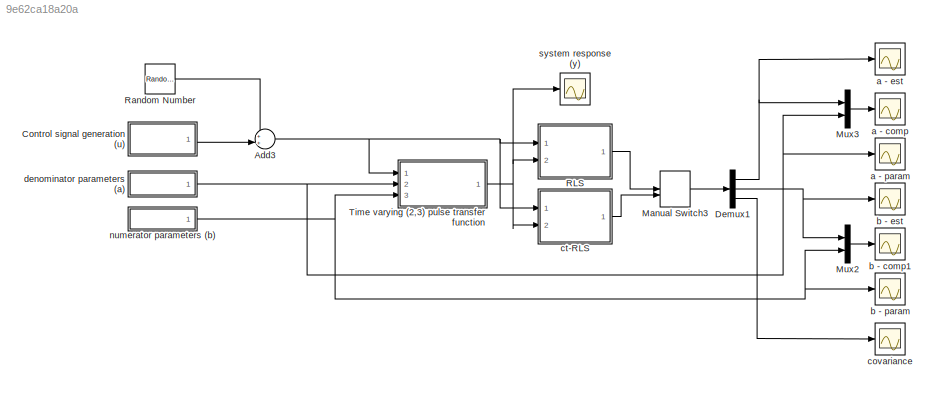
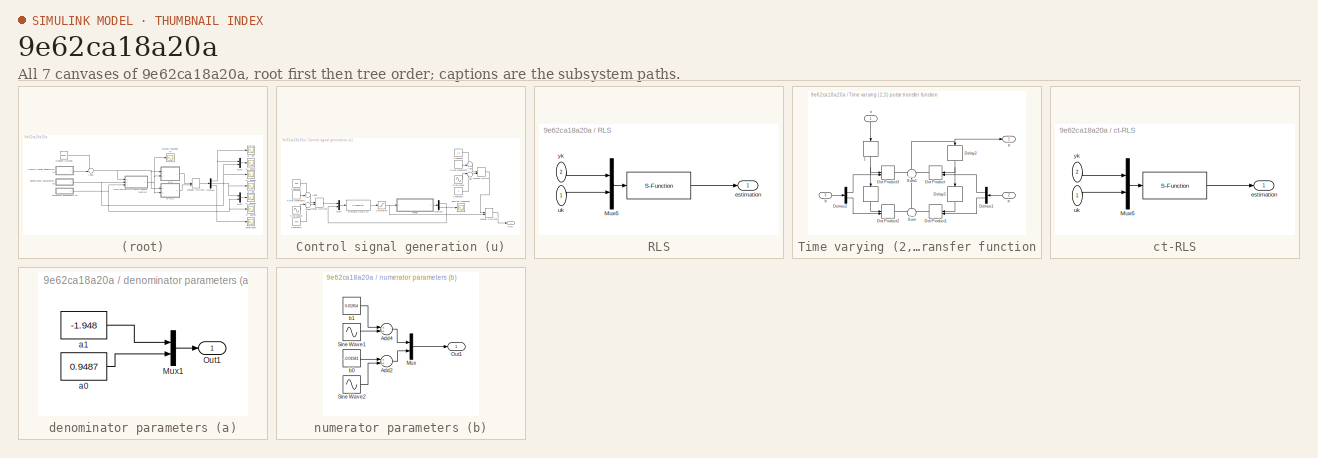
[diagram: thumbnail index - all 7 canvases of the model, root first then tree order]
MODEL slx_9e62ca18a20a
KIND model
CONFIG AbsTol = auto
CONFIG FixedStep = auto
CONFIG MaxStep = auto
CONFIG MinStep = auto
CONFIG RelTol = 1e-3
CONFIG SampleTimeConstraint = Unconstrained
CONFIG Solver = VariableStepAuto
CONFIG SolverMode = Auto
CONFIG SolverName = VariableStepAuto
CONFIG StartTime = 0.0
CONFIG StopTime = 40
BLOCK [Sum] Add3
  IconShape = round
  InputSameDT = off
  Inputs = ++|
  OutDataTypeStr = Inherit: Inherit via internal rule
  Ports = [2, 1]
  SaturateOnIntegerOverflow = off
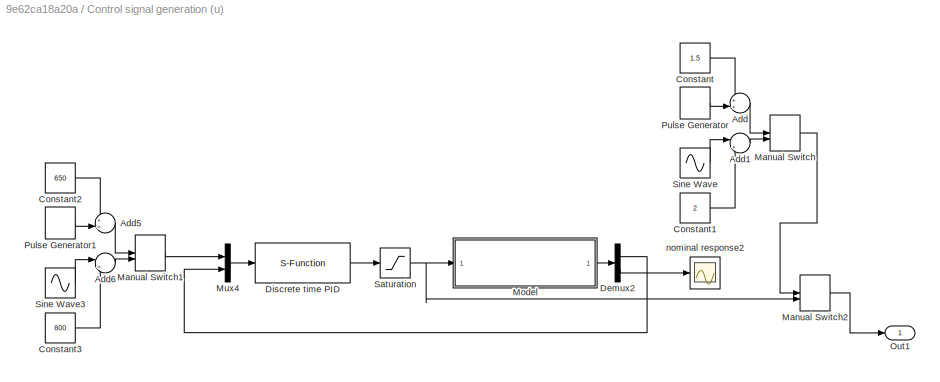
BLOCK [SubSystem] Control signal generation (u)
  Ports = [0, 1]
  RequestExecContextInheritance = off
  Variant = off
BLOCK [Sum] Control signal generation (u)/Add
  IconShape = round
  InputSameDT = off
  Inputs = ++|
  OutDataTypeStr = Inherit: Inherit via internal rule
  Ports = [2, 1]
  SaturateOnIntegerOverflow = off
BLOCK [Sum] Control signal generation (u)/Add1
  IconShape = round
  InputSameDT = off
  Inputs = |++
  OutDataTypeStr = Inherit: Inherit via internal rule
  Ports = [2, 1]
  SaturateOnIntegerOverflow = off
BLOCK [Sum] Control signal generation (u)/Add5
  IconShape = round
  InputSameDT = off
  Inputs = ++|
  OutDataTypeStr = Inherit: Inherit via internal rule
  Ports = [2, 1]
  SaturateOnIntegerOverflow = off
BLOCK [Sum] Control signal generation (u)/Add6
  IconShape = round
  InputSameDT = off
  Inputs = |++
  OutDataTypeStr = Inherit: Inherit via internal rule
  Ports = [2, 1]
  SaturateOnIntegerOverflow = off
BLOCK [Constant] Control signal generation (u)/Constant
  Value = 1.5
BLOCK [Constant] Control signal generation (u)/Constant1
  Value = 2
BLOCK [Constant] Control signal generation (u)/Constant2
  Value = 650
BLOCK [Constant] Control signal generation (u)/Constant3
  Value = 800
BLOCK [Demux] Control signal generation (u)/Demux2
  DisplayOption = bar
  Outputs = [1,1]
  Ports = [1, 2]
BLOCK [S-Function] Control signal generation (u)/Discrete time PID
  EnableBusSupport = off
  FunctionName = PID_d_sfunc
  Parameters = PIDparam
  Ports = [1, 1]
  SFunctionDeploymentMode = off
BLOCK [ManualSwitch] Control signal generation (u)/Manual Switch
  CurrentSetting = 0
BLOCK [ManualSwitch] Control signal generation (u)/Manual Switch1
  CurrentSetting = 0
BLOCK [ManualSwitch] Control signal generation (u)/Manual Switch2
BLOCK [ModelReference] Control signal generation (u)/Model
  ModelNameDialog = rotor_model_c.slx
  ModelReferenceVersion = 1.30
  Ports = [1, 1]
  Variant = off
BLOCK [Mux] Control signal generation (u)/Mux4
  DisplayOption = bar
  Inputs = 2
  Ports = [2, 1]
BLOCK [Outport] Control signal generation (u)/Out1
  IconDisplay = Port number
BLOCK [DiscretePulseGenerator] Control signal generation (u)/Pulse Generator
  Amplitude = 0.5
  Period = 4
  Ports = [0, 1]
  PulseType = Time based
  PulseWidth = 50
BLOCK [DiscretePulseGenerator] Control signal generation (u)/Pulse Generator1
  Amplitude = 600
  Period = 4
  Ports = [0, 1]
  PulseType = Time based
  PulseWidth = 50
BLOCK [Saturate] Control signal generation (u)/Saturation
  InputPortMap = u0
  LowerLimit = 0
  Ports = [1, 1]
  UpperLimit = 4.3
BLOCK [Sin] Control signal generation (u)/Sine Wave
  Amplitude = -1
  Ports = [0, 1]
  SampleTime = 0
BLOCK [Sin] Control signal generation (u)/Sine Wave3
  Amplitude = 300
  Ports = [0, 1]
  SampleTime = 0
BLOCK [Scope] Control signal generation (u)/nominal response2
  Ports = [1]
  ScopeSpecificationString = Simulink.scopes.TimeScopeBlockCfg('CurrentConfiguration', extmgr.ConfigurationSet(extmgr.Configuration('Core','General UI',true),extmgr.Configuration('Core','Source UI',true),extmgr.Configuration('Sources','WiredSimulink',true,'DataLoggingVariableName','ScopeData2'),extmgr.Configuration('Visuals','Time Domain',true,'SerializedDisplays',{struct('MinYLimReal','0.30438','MaxYLimReal','3.62656','YLabe...<+1361ch>
BLOCK [Demux] Demux1
  DisplayOption = bar
  Outputs = [2,2,1]
  Ports = [1, 3]
BLOCK [ManualSwitch] Manual Switch3
BLOCK [Mux] Mux2
  DisplayOption = bar
  Inputs = 2
  Ports = [2, 1]
BLOCK [Mux] Mux3
  DisplayOption = bar
  Inputs = 2
  Ports = [2, 1]
BLOCK [SubSystem] RLS
  Ports = [2, 1]
  RequestExecContextInheritance = off
  Variant = off
BLOCK [S-Function] RLS/   
  EnableBusSupport = off
  FunctionName = sfunc_RLS_d
  Parameters = RLSparam
  Ports = [1, 1]
  SFunctionDeploymentMode = off
BLOCK [Mux] RLS/Mux6
  DisplayOption = bar
  Inputs = 2
  Ports = [2, 1]
BLOCK [Outport] RLS/estimation
  IconDisplay = Port number
BLOCK [Inport] RLS/uk
  IconDisplay = Port number
BLOCK [Inport] RLS/yk
  IconDisplay = Port number
  Port = 2
BLOCK [RandomNumber] Random Number
  SampleTime = 0.002
  Variance = 0.01
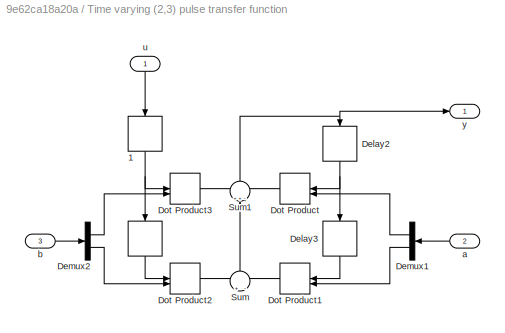
BLOCK [SubSystem] Time varying (2,3) pulse transfer function
  Ports = [3, 1]
  RequestExecContextInheritance = off
  Variant = off
BLOCK [Delay] Time varying (2,3) pulse transfer function/  
  DelayLength = 1
  InitialCondition = 0
  InputPortMap = u0
  Ports = [1, 1]
  SampleTime = 0.002
BLOCK [Delay] Time varying (2,3) pulse transfer function/  1
  DelayLength = 1
  InitialCondition = 0
  InputPortMap = u0
  Ports = [1, 1]
  SampleTime = 0.002
BLOCK [Delay] Time varying (2,3) pulse transfer function/Delay2
  DelayLength = 1
  InitialCondition = 0
  InputPortMap = u0
  Ports = [1, 1]
  SampleTime = 0.002
BLOCK [Delay] Time varying (2,3) pulse transfer function/Delay3
  DelayLength = 1
  InitialCondition = 0
  InputPortMap = u0
  Ports = [1, 1]
  SampleTime = 0.002
BLOCK [Demux] Time varying (2,3) pulse transfer function/Demux1
  DisplayOption = bar
  Outputs = [1,1]
  Ports = [1, 2]
BLOCK [Demux] Time varying (2,3) pulse transfer function/Demux2
  DisplayOption = bar
  Outputs = [1,1]
  Ports = [1, 2]
BLOCK [DotProduct] Time varying (2,3) pulse transfer function/Dot Product
  OutDataTypeStr = Inherit: Inherit via internal rule
BLOCK [DotProduct] Time varying (2,3) pulse transfer function/Dot Product1
  OutDataTypeStr = Inherit: Inherit via internal rule
BLOCK [DotProduct] Time varying (2,3) pulse transfer function/Dot Product2
  OutDataTypeStr = Inherit: Inherit via internal rule
BLOCK [DotProduct] Time varying (2,3) pulse transfer function/Dot Product3
  OutDataTypeStr = Inherit: Inherit via internal rule
BLOCK [Sum] Time varying (2,3) pulse transfer function/Sum
  IconShape = round
  InputSameDT = off
  Inputs = +|-
  OutDataTypeStr = Inherit: Inherit via internal rule
  Ports = [2, 1]
  SaturateOnIntegerOverflow = off
BLOCK [Sum] Time varying (2,3) pulse transfer function/Sum1
  IconShape = round
  InputSameDT = off
  Inputs = ++-
  OutDataTypeStr = Inherit: Inherit via internal rule
  Ports = [3, 1]
  SaturateOnIntegerOverflow = off
BLOCK [Inport] Time varying (2,3) pulse transfer function/a
  IconDisplay = Port number
  Port = 2
BLOCK [Inport] Time varying (2,3) pulse transfer function/b
  IconDisplay = Port number
  Port = 3
BLOCK [Inport] Time varying (2,3) pulse transfer function/u
  IconDisplay = Port number
BLOCK [Outport] Time varying (2,3) pulse transfer function/y
  IconDisplay = Port number
BLOCK [Scope] a - comp
  Ports = [1]
  ScopeSpecificationString = Simulink.scopes.TimeScopeBlockCfg('CurrentConfiguration', extmgr.ConfigurationSet(extmgr.Configuration('Core','General UI',true),extmgr.Configuration('Core','Source UI',true),extmgr.Configuration('Sources','WiredSimulink',true,'DataLoggingVariableName','ScopeData6'),extmgr.Configuration('Visuals','Time Domain',true,'SerializedDisplays',{struct('MinYLimReal','-2.33236','MaxYLimReal','1.33277','YLab...<+1471ch>
BLOCK [Scope] a - est
  Ports = [1]
  ScopeSpecificationString = Simulink.scopes.TimeScopeBlockCfg('CurrentConfiguration', extmgr.ConfigurationSet(extmgr.Configuration('Core','General UI',true),extmgr.Configuration('Core','Source UI',true),extmgr.Configuration('Sources','WiredSimulink',true,'DataLoggingVariableName','ScopeData2'),extmgr.Configuration('Visuals','Time Domain',true,'SerializedDisplays',{struct('MinYLimReal','-2.33236','MaxYLimReal','1.33277','YLab...<+1382ch>
BLOCK [Scope] a - param
  Ports = [1]
  ScopeSpecificationString = Simulink.scopes.TimeScopeBlockCfg('CurrentConfiguration', extmgr.ConfigurationSet(extmgr.Configuration('Core','General UI',true),extmgr.Configuration('Core','Source UI',true),extmgr.Configuration('Sources','WiredSimulink',true,'DataLoggingVariableName','ScopeData4'),extmgr.Configuration('Visuals','Time Domain',true,'SerializedDisplays',{struct('MinYLimReal','-2.31009','MaxYLimReal','1.31079','YLab...<+1366ch>
BLOCK [Scope] b - comp1
  Ports = [1]
  ScopeSpecificationString = Simulink.scopes.TimeScopeBlockCfg('CurrentConfiguration', extmgr.ConfigurationSet(extmgr.Configuration('Core','General UI',true),extmgr.Configuration('Core','Source UI',true),extmgr.Configuration('Sources','WiredSimulink',true,'DataLoggingVariableName','ScopeData7'),extmgr.Configuration('Visuals','Time Domain',true,'SerializedDisplays',{struct('MinYLimReal','-0.05784','MaxYLimReal','0.23878','YLab...<+1515ch>
BLOCK [Scope] b - est
  Ports = [1]
  ScopeSpecificationString = Simulink.scopes.TimeScopeBlockCfg('CurrentConfiguration', extmgr.ConfigurationSet(extmgr.Configuration('Core','General UI',true),extmgr.Configuration('Core','Source UI',true),extmgr.Configuration('Sources','WiredSimulink',true,'DataLoggingVariableName','ScopeData5'),extmgr.Configuration('Visuals','Time Domain',true,'SerializedDisplays',{struct('MinYLimReal','-28.55035','MaxYLimReal','30.30186','YL...<+1434ch>
BLOCK [Scope] b - param
  Ports = [1]
  ScopeSpecificationString = Simulink.scopes.TimeScopeBlockCfg('CurrentConfiguration', extmgr.ConfigurationSet(extmgr.Configuration('Core','General UI',true),extmgr.Configuration('Core','Source UI',true),extmgr.Configuration('Sources','WiredSimulink',true,'DataLoggingVariableName','ScopeData3'),extmgr.Configuration('Visuals','Time Domain',true,'SerializedDisplays',{struct('MinYLimReal','-0.03115','MaxYLimReal','0.03628','YLab...<+1399ch>
BLOCK [Scope] covariance
  Ports = [1]
  ScopeSpecificationString = Simulink.scopes.TimeScopeBlockCfg('CurrentConfiguration', extmgr.ConfigurationSet(extmgr.Configuration('Core','General UI',true),extmgr.Configuration('Core','Source UI',true),extmgr.Configuration('Sources','WiredSimulink',true,'DataLoggingVariableName','ScopeData1'),extmgr.Configuration('Visuals','Time Domain',true,'SerializedDisplays',{struct('MinYLimReal','-1249.9101','MaxYLimReal','11249.1909',...<+1414ch>
BLOCK [SubSystem] ct-RLS
  Ports = [2, 1]
  RequestExecContextInheritance = off
  Variant = off
BLOCK [S-Function] ct-RLS/   
  EnableBusSupport = off
  FunctionName = sfunc_trRLS_d
  Parameters = trRLSparam
  Ports = [1, 1]
  SFunctionDeploymentMode = off
BLOCK [Mux] ct-RLS/Mux6
  DisplayOption = bar
  Inputs = 2
  Ports = [2, 1]
BLOCK [Outport] ct-RLS/estimation
  IconDisplay = Port number
BLOCK [Inport] ct-RLS/uk
  IconDisplay = Port number
BLOCK [Inport] ct-RLS/yk
  IconDisplay = Port number
  Port = 2
BLOCK [SubSystem] denominator parameters (a)
  Ports = [0, 1]
  RequestExecContextInheritance = off
  Variant = off
BLOCK [Mux] denominator parameters (a)/Mux1
  DisplayOption = bar
  Inputs = 2
  Ports = [2, 1]
BLOCK [Outport] denominator parameters (a)/Out1
  IconDisplay = Port number
BLOCK [Constant] denominator parameters (a)/a0
  Value = 0.9487
BLOCK [Constant] denominator parameters (a)/a1
  Value = -1.948
BLOCK [SubSystem] numerator parameters (b)
  Ports = [0, 1]
  RequestExecContextInheritance = off
  Variant = off
BLOCK [Sum] numerator parameters (b)/Add2
  InputSameDT = off
  OutDataTypeStr = Inherit: Inherit via internal rule
  Ports = [2, 1]
  SaturateOnIntegerOverflow = off
BLOCK [Sum] numerator parameters (b)/Add4
  InputSameDT = off
  OutDataTypeStr = Inherit: Inherit via internal rule
  Ports = [2, 1]
  SaturateOnIntegerOverflow = off
BLOCK [Mux] numerator parameters (b)/Mux
  DisplayOption = bar
  Inputs = 2
  Ports = [2, 1]
BLOCK [Outport] numerator parameters (b)/Out1
  IconDisplay = Port number
BLOCK [Sin] numerator parameters (b)/Sine Wave1
  Amplitude = 0.01
  Frequency = 0.2
  Ports = [0, 1]
  SampleTime = 0
BLOCK [Sin] numerator parameters (b)/Sine Wave2
  Amplitude = 0.005
  Frequency = 0.4
  Ports = [0, 1]
  SampleTime = 0
BLOCK [Constant] numerator parameters (b)/b0
  Value = -0.01941
BLOCK [Constant] numerator parameters (b)/b1
  Value = 0.01954
BLOCK [Scope] system response (y)
  Ports = [1]
  ScopeSpecificationString = Simulink.scopes.TimeScopeBlockCfg('CurrentConfiguration', extmgr.ConfigurationSet(extmgr.Configuration('Core','General UI',true),extmgr.Configuration('Core','Source UI',true),extmgr.Configuration('Sources','WiredSimulink',true,'DataLoggingVariableName','ScopeData1'),extmgr.Configuration('Visuals','Time Domain',true,'SerializedDisplays',{struct('MinYLimReal','-57.03098','MaxYLimReal','68.50514','YL...<+1407ch>
NET Add3:1 -> RLS:1, Time varying (2,3) pulse transfer function:1, ct-RLS:1
LINE Control signal generation (u)/Add1:1 -> Control signal generation (u)/Manual Switch:2
LINE Control signal generation (u)/Add5:1 -> Control signal generation (u)/Manual Switch1:1
LINE Control signal generation (u)/Add6:1 -> Control signal generation (u)/Manual Switch1:2
LINE Control signal generation (u)/Add:1 -> Control signal generation (u)/Manual Switch:1
LINE Control signal generation (u)/Constant1:1 -> Control signal generation (u)/Add1:2
LINE Control signal generation (u)/Constant2:1 -> Control signal generation (u)/Add5:1
LINE Control signal generation (u)/Constant3:1 -> Control signal generation (u)/Add6:2
LINE Control signal generation (u)/Constant:1 -> Control signal generation (u)/Add:1
LINE Control signal generation (u)/Demux2:1 -> Control signal generation (u)/Mux4:2
LINE Control signal generation (u)/Demux2:2 -> Control signal generation (u)/nominal response2:1
LINE Control signal generation (u)/Discrete time PID:1 -> Control signal generation (u)/Saturation:1
LINE Control signal generation (u)/Manual Switch1:1 -> Control signal generation (u)/Mux4:1
LINE Control signal generation (u)/Manual Switch2:1 -> Control signal generation (u)/Out1:1
LINE Control signal generation (u)/Manual Switch:1 -> Control signal generation (u)/Manual Switch2:1
LINE Control signal generation (u)/Model:1 -> Control signal generation (u)/Demux2:1
LINE Control signal generation (u)/Mux4:1 -> Control signal generation (u)/Discrete time PID:1
LINE Control signal generation (u)/Pulse Generator1:1 -> Control signal generation (u)/Add5:2
LINE Control signal generation (u)/Pulse Generator:1 -> Control signal generation (u)/Add:2
NET Control signal generation (u)/Saturation:1 -> Control signal generation (u)/Manual Switch2:2, Control signal generation (u)/Model:1
LINE Control signal generation (u)/Sine Wave3:1 -> Control signal generation (u)/Add6:1
LINE Control signal generation (u)/Sine Wave:1 -> Control signal generation (u)/Add1:1
LINE Control signal generation (u):1 -> Add3:2
NET Demux1:1 -> Mux3:1, a - est:1
NET Demux1:2 -> Mux2:1, b - est:1
LINE Demux1:3 -> covariance:1
LINE Manual Switch3:1 -> Demux1:1
LINE Mux2:1 -> b - comp1:1
LINE Mux3:1 -> a - comp:1
LINE RLS/   :1 -> RLS/estimation:1
LINE RLS/Mux6:1 -> RLS/   :1
LINE RLS/uk:1 -> RLS/Mux6:2
LINE RLS/yk:1 -> RLS/Mux6:1
LINE RLS:1 -> Manual Switch3:1
LINE Random Number:1 -> Add3:1
NET Time varying (2,3) pulse transfer function/  1:1 -> Time varying (2,3) pulse transfer function/  :1, Time varying (2,3) pulse transfer function/Dot Product3:1
LINE Time varying (2,3) pulse transfer function/  :1 -> Time varying (2,3) pulse transfer function/Dot Product2:1
NET Time varying (2,3) pulse transfer function/Delay2:1 -> Time varying (2,3) pulse transfer function/Delay3:1, Time varying (2,3) pulse transfer function/Dot Product:1
LINE Time varying (2,3) pulse transfer function/Delay3:1 -> Time varying (2,3) pulse transfer function/Dot Product1:1
LINE Time varying (2,3) pulse transfer function/Demux1:1 -> Time varying (2,3) pulse transfer function/Dot Product:2
LINE Time varying (2,3) pulse transfer function/Demux1:2 -> Time varying (2,3) pulse transfer function/Dot Product1:2
LINE Time varying (2,3) pulse transfer function/Demux2:1 -> Time varying (2,3) pulse transfer function/Dot Product3:2
LINE Time varying (2,3) pulse transfer function/Demux2:2 -> Time varying (2,3) pulse transfer function/Dot Product2:2
LINE Time varying (2,3) pulse transfer function/Dot Product1:1 -> Time varying (2,3) pulse transfer function/Sum:2
LINE Time varying (2,3) pulse transfer function/Dot Product2:1 -> Time varying (2,3) pulse transfer function/Sum:1
LINE Time varying (2,3) pulse transfer function/Dot Product3:1 -> Time varying (2,3) pulse transfer function/Sum1:1
LINE Time varying (2,3) pulse transfer function/Dot Product:1 -> Time varying (2,3) pulse transfer function/Sum1:3
NET Time varying (2,3) pulse transfer function/Sum1:1 -> Time varying (2,3) pulse transfer function/Delay2:1, Time varying (2,3) pulse transfer function/y:1
LINE Time varying (2,3) pulse transfer function/Sum:1 -> Time varying (2,3) pulse transfer function/Sum1:2
LINE Time varying (2,3) pulse transfer function/a:1 -> Time varying (2,3) pulse transfer function/Demux1:1
LINE Time varying (2,3) pulse transfer function/b:1 -> Time varying (2,3) pulse transfer function/Demux2:1
LINE Time varying (2,3) pulse transfer function/u:1 -> Time varying (2,3) pulse transfer function/  1:1
NET Time varying (2,3) pulse transfer function:1 -> RLS:2, ct-RLS:2, system response (y):1
LINE ct-RLS/   :1 -> ct-RLS/estimation:1
LINE ct-RLS/Mux6:1 -> ct-RLS/   :1
LINE ct-RLS/uk:1 -> ct-RLS/Mux6:2
LINE ct-RLS/yk:1 -> ct-RLS/Mux6:1
LINE ct-RLS:1 -> Manual Switch3:2
LINE denominator parameters (a)/Mux1:1 -> denominator parameters (a)/Out1:1
LINE denominator parameters (a)/a0:1 -> denominator parameters (a)/Mux1:2
LINE denominator parameters (a)/a1:1 -> denominator parameters (a)/Mux1:1
NET denominator parameters (a):1 -> Mux3:2, Time varying (2,3) pulse transfer function:2, a - param:1
LINE numerator parameters (b)/Add2:1 -> numerator parameters (b)/Mux:2
LINE numerator parameters (b)/Add4:1 -> numerator parameters (b)/Mux:1
LINE numerator parameters (b)/Mux:1 -> numerator parameters (b)/Out1:1
LINE numerator parameters (b)/Sine Wave1:1 -> numerator parameters (b)/Add4:2
LINE numerator parameters (b)/Sine Wave2:1 -> numerator parameters (b)/Add2:2
LINE numerator parameters (b)/b0:1 -> numerator parameters (b)/Add2:1
LINE numerator parameters (b)/b1:1 -> numerator parameters (b)/Add4:1
NET numerator parameters (b):1 -> Mux2:2, Time varying (2,3) pulse transfer function:3, b - param:1
note: NET lines group one-source signal fan-out (src -> all destinations, sorted); 1:1 wires keep LINE
